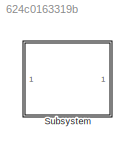
MODEL slx_624c0163319b
KIND model
CONFIG AbsTol = auto
CONFIG EnableMultiTasking = on
CONFIG FixedStep = auto
CONFIG MaxStep = auto
CONFIG MinStep = auto
CONFIG RelTol = 1e-3
CONFIG SampleTimeConstraint = Unconstrained
CONFIG Solver = FixedStepAuto
CONFIG SolverName = FixedStepAuto
CONFIG StartTime = 0.0
CONFIG StopTime = 10.0
WORKSPACE source: external: MATLAB File  (data not in archive)
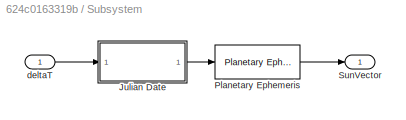
BLOCK [SubSystem] Subsystem
  Ports = [1, 1]
  RequestExecContextInheritance = off
  Variant = off
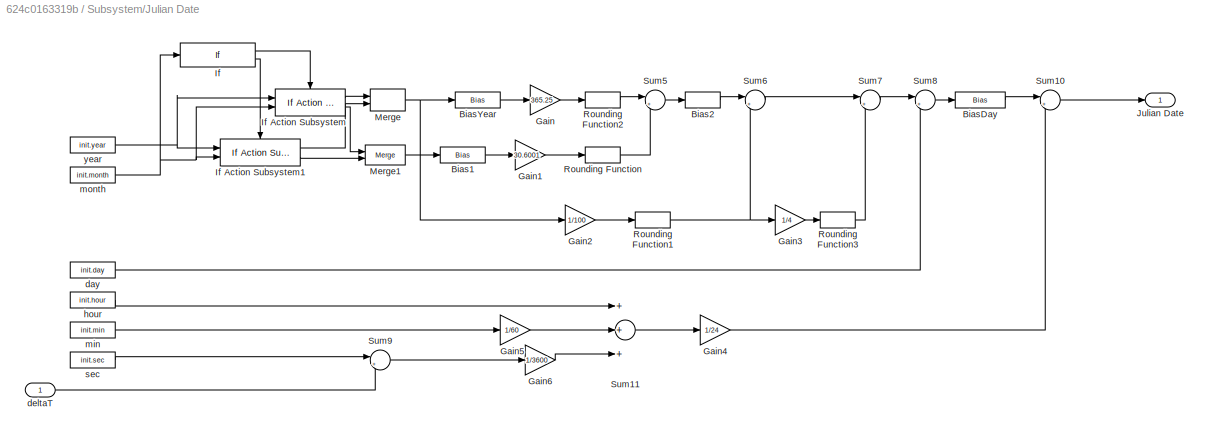
BLOCK [SubSystem] Subsystem/Julian Date
  Ports = [1, 1]
  RequestExecContextInheritance = off
  Variant = off
BLOCK [Bias] Subsystem/Julian Date/Bias1
  Bias = 1
  SaturateOnIntegerOverflow = off
BLOCK [Bias] Subsystem/Julian Date/Bias2
  Bias = 2
  SaturateOnIntegerOverflow = off
BLOCK [Bias] Subsystem/Julian Date/BiasDay
  Bias = -1524.5
  SaturateOnIntegerOverflow = off
BLOCK [Bias] Subsystem/Julian Date/BiasYear
  Bias = 4716
  SaturateOnIntegerOverflow = off
BLOCK [Gain] Subsystem/Julian Date/Gain
  Gain = 365.25
  OutDataTypeStr = Inherit: Inherit via internal rule
  ParamDataTypeStr = Inherit: Inherit via internal rule
  SaturateOnIntegerOverflow = off
BLOCK [Gain] Subsystem/Julian Date/Gain1
  Gain = 30.6001
  OutDataTypeStr = Inherit: Inherit via internal rule
  ParamDataTypeStr = Inherit: Inherit via internal rule
  SaturateOnIntegerOverflow = off
BLOCK [Gain] Subsystem/Julian Date/Gain2
  Gain = 1/100
  OutDataTypeStr = Inherit: Inherit via internal rule
  ParamDataTypeStr = Inherit: Inherit via internal rule
  SaturateOnIntegerOverflow = off
BLOCK [Gain] Subsystem/Julian Date/Gain3
  Gain = 1/4
  OutDataTypeStr = Inherit: Inherit via internal rule
  ParamDataTypeStr = Inherit: Inherit via internal rule
  SaturateOnIntegerOverflow = off
BLOCK [Gain] Subsystem/Julian Date/Gain4
  Gain = 1/24
  OutDataTypeStr = Inherit: Inherit via internal rule
  ParamDataTypeStr = Inherit: Inherit via internal rule
  SaturateOnIntegerOverflow = off
BLOCK [Gain] Subsystem/Julian Date/Gain5
  Gain = 1/60
  OutDataTypeStr = Inherit: Inherit via internal rule
  ParamDataTypeStr = Inherit: Inherit via internal rule
  SaturateOnIntegerOverflow = off
BLOCK [Gain] Subsystem/Julian Date/Gain6
  Gain = 1/3600
  OutDataTypeStr = Inherit: Inherit via internal rule
  ParamDataTypeStr = Inherit: Inherit via internal rule
  SaturateOnIntegerOverflow = off
BLOCK [If] Subsystem/Julian Date/If
  IfExpression = u1 <= 2
  Ports = [1, 2]
BLOCK [Reference] Subsystem/Julian Date/If Action Subsystem  REF=aerolibconvert2/Julian Date Conversion/If Action
Subsystem
  Ports = [2, 2, 0, 0, 0, 0, 0, 1]
  SourceBlock = aerolibconvert2/Julian Date Conversion/If Action\nSubsystem
  SourceProductBaseCode = AE
  SourceProductName = Aerospace Blockset
  SourceType = SubSystem
BLOCK [Reference] Subsystem/Julian Date/If Action Subsystem1  REF=aerolibconvert2/Julian Date Conversion/If Action
Subsystem1
  Ports = [2, 2, 0, 0, 0, 0, 0, 1]
  SourceBlock = aerolibconvert2/Julian Date Conversion/If Action\nSubsystem1
  SourceProductBaseCode = AE
  SourceProductName = Aerospace Blockset
  SourceType = SubSystem
BLOCK [Outport] Subsystem/Julian Date/Julian Date
  IconDisplay = Port number
  VarSizeSig = No
BLOCK [Merge] Subsystem/Julian Date/Merge
  Ports = [2, 1]
BLOCK [Merge] Subsystem/Julian Date/Merge1
  Ports = [2, 1]
BLOCK [Rounding] Subsystem/Julian Date/Rounding Function
BLOCK [Rounding] Subsystem/Julian Date/Rounding Function1
BLOCK [Rounding] Subsystem/Julian Date/Rounding Function2
BLOCK [Rounding] Subsystem/Julian Date/Rounding Function3
BLOCK [Sum] Subsystem/Julian Date/Sum10
  IconShape = round
  InputSameDT = off
  Inputs = |++
  OutDataTypeStr = Inherit: Inherit via internal rule
  Ports = [2, 1]
  SaturateOnIntegerOverflow = off
BLOCK [Sum] Subsystem/Julian Date/Sum11
  InputSameDT = off
  Inputs = +++
  OutDataTypeStr = Inherit: Inherit via internal rule
  Ports = [3, 1]
  SaturateOnIntegerOverflow = off
BLOCK [Sum] Subsystem/Julian Date/Sum5
  IconShape = round
  InputSameDT = off
  Inputs = |++
  OutDataTypeStr = Inherit: Inherit via internal rule
  Ports = [2, 1]
  SaturateOnIntegerOverflow = off
BLOCK [Sum] Subsystem/Julian Date/Sum6
  IconShape = round
  InputSameDT = off
  Inputs = |+-
  OutDataTypeStr = Inherit: Inherit via internal rule
  Ports = [2, 1]
  SaturateOnIntegerOverflow = off
BLOCK [Sum] Subsystem/Julian Date/Sum7
  IconShape = round
  InputSameDT = off
  Inputs = |++
  OutDataTypeStr = Inherit: Inherit via internal rule
  Ports = [2, 1]
  SaturateOnIntegerOverflow = off
BLOCK [Sum] Subsystem/Julian Date/Sum8
  IconShape = round
  InputSameDT = off
  Inputs = |++
  OutDataTypeStr = Inherit: Inherit via internal rule
  Ports = [2, 1]
  SaturateOnIntegerOverflow = off
BLOCK [Sum] Subsystem/Julian Date/Sum9
  IconShape = round
  InputSameDT = off
  Inputs = |++
  OutDataTypeStr = Inherit: Inherit via internal rule
  Ports = [2, 1]
  SaturateOnIntegerOverflow = off
BLOCK [Constant] Subsystem/Julian Date/day
  Value = init.day
BLOCK [Inport] Subsystem/Julian Date/deltaT
  IconDisplay = Port number
  OutMin = 0
  PortDimensions = 1
  VarSizeSig = No
BLOCK [Constant] Subsystem/Julian Date/hour
  Value = init.hour
BLOCK [Constant] Subsystem/Julian Date/min
  Value = init.min
BLOCK [Constant] Subsystem/Julian Date/month
  Value = init.month
BLOCK [Constant] Subsystem/Julian Date/sec
  Value = init.sec
BLOCK [Constant] Subsystem/Julian Date/year
  Value = init.year
BLOCK [Reference] Subsystem/Planetary Ephemeris  REF=aerolibcelestial/Planetary Ephemeris
  Ports = [1, 1]
  SourceBlock = aerolibcelestial/Planetary Ephemeris
  SourceProductBaseCode = AE
  SourceProductName = Aerospace Blockset
  SourceType = PlanetaryEphemeris
BLOCK [Outport] Subsystem/SunVector
  IconDisplay = Port number
BLOCK [Inport] Subsystem/deltaT
  IconDisplay = Port number
  PortDimensions = 1
  VarSizeSig = No
LINE Subsystem/Julian Date/Bias1:1 -> Subsystem/Julian Date/Gain1:1
LINE Subsystem/Julian Date/Bias2:1 -> Subsystem/Julian Date/Sum6:1
LINE Subsystem/Julian Date/BiasDay:1 -> Subsystem/Julian Date/Sum10:1
LINE Subsystem/Julian Date/BiasYear:1 -> Subsystem/Julian Date/Gain:1
LINE Subsystem/Julian Date/Gain1:1 -> Subsystem/Julian Date/Rounding Function:1
LINE Subsystem/Julian Date/Gain2:1 -> Subsystem/Julian Date/Rounding Function1:1
LINE Subsystem/Julian Date/Gain3:1 -> Subsystem/Julian Date/Rounding Function3:1
LINE Subsystem/Julian Date/Gain4:1 -> Subsystem/Julian Date/Sum10:2
LINE Subsystem/Julian Date/Gain5:1 -> Subsystem/Julian Date/Sum11:2
LINE Subsystem/Julian Date/Gain6:1 -> Subsystem/Julian Date/Sum11:3
LINE Subsystem/Julian Date/Gain:1 -> Subsystem/Julian Date/Rounding Function2:1
LINE Subsystem/Julian Date/If Action Subsystem1:1 -> Subsystem/Julian Date/Merge:2
LINE Subsystem/Julian Date/If Action Subsystem1:2 -> Subsystem/Julian Date/Merge1:2
LINE Subsystem/Julian Date/If Action Subsystem:1 -> Subsystem/Julian Date/Merge:1
LINE Subsystem/Julian Date/If Action Subsystem:2 -> Subsystem/Julian Date/Merge1:1
LINE Subsystem/Julian Date/If:1 -> Subsystem/Julian Date/If Action Subsystem:ifaction
LINE Subsystem/Julian Date/If:2 -> Subsystem/Julian Date/If Action Subsystem1:ifaction
LINE Subsystem/Julian Date/Merge1:1 -> Subsystem/Julian Date/Bias1:1
NET Subsystem/Julian Date/Merge:1 -> Subsystem/Julian Date/BiasYear:1, Subsystem/Julian Date/Gain2:1
NET Subsystem/Julian Date/Rounding Function1:1 -> Subsystem/Julian Date/Gain3:1, Subsystem/Julian Date/Sum6:2
LINE Subsystem/Julian Date/Rounding Function2:1 -> Subsystem/Julian Date/Sum5:1
LINE Subsystem/Julian Date/Rounding Function3:1 -> Subsystem/Julian Date/Sum7:2
LINE Subsystem/Julian Date/Rounding Function:1 -> Subsystem/Julian Date/Sum5:2
LINE Subsystem/Julian Date/Sum10:1 -> Subsystem/Julian Date/Julian Date:1
LINE Subsystem/Julian Date/Sum11:1 -> Subsystem/Julian Date/Gain4:1
LINE Subsystem/Julian Date/Sum5:1 -> Subsystem/Julian Date/Bias2:1
LINE Subsystem/Julian Date/Sum6:1 -> Subsystem/Julian Date/Sum7:1
LINE Subsystem/Julian Date/Sum7:1 -> Subsystem/Julian Date/Sum8:1
LINE Subsystem/Julian Date/Sum8:1 -> Subsystem/Julian Date/BiasDay:1
LINE Subsystem/Julian Date/Sum9:1 -> Subsystem/Julian Date/Gain6:1
LINE Subsystem/Julian Date/day:1 -> Subsystem/Julian Date/Sum8:2
LINE Subsystem/Julian Date/deltaT:1 -> Subsystem/Julian Date/Sum9:2
LINE Subsystem/Julian Date/hour:1 -> Subsystem/Julian Date/Sum11:1
LINE Subsystem/Julian Date/min:1 -> Subsystem/Julian Date/Gain5:1
NET Subsystem/Julian Date/month:1 -> Subsystem/Julian Date/If Action Subsystem1:2, Subsystem/Julian Date/If Action Subsystem:2, Subsystem/Julian Date/If:1
LINE Subsystem/Julian Date/sec:1 -> Subsystem/Julian Date/Sum9:1
NET Subsystem/Julian Date/year:1 -> Subsystem/Julian Date/If Action Subsystem1:1, Subsystem/Julian Date/If Action Subsystem:1
LINE Subsystem/Julian Date:1 -> Subsystem/Planetary Ephemeris:1
LINE Subsystem/Planetary Ephemeris:1 -> Subsystem/SunVector:1
LINE Subsystem/deltaT:1 -> Subsystem/Julian Date:1
note: NET lines group one-source signal fan-out (src -> all destinations, sorted); 1:1 wires keep LINE
